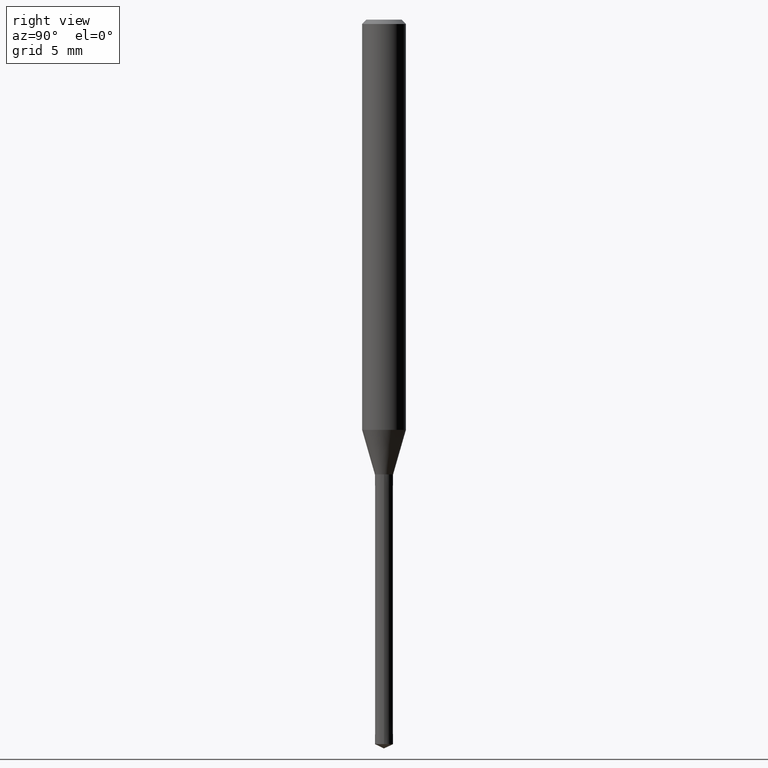
[diagram: clean part render]
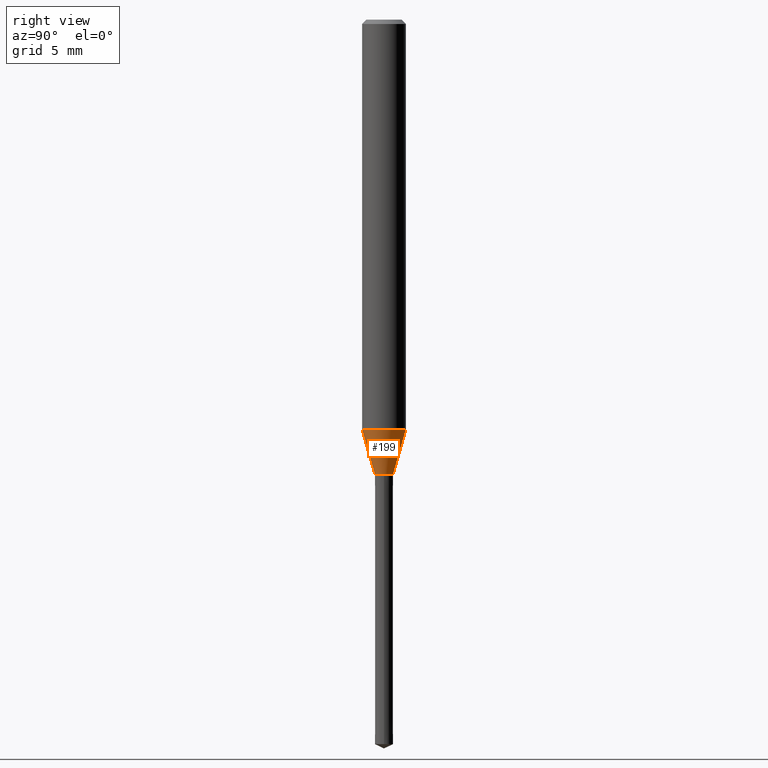
[diagram: same view with one face highlighted and labeled with its STEP entity id]
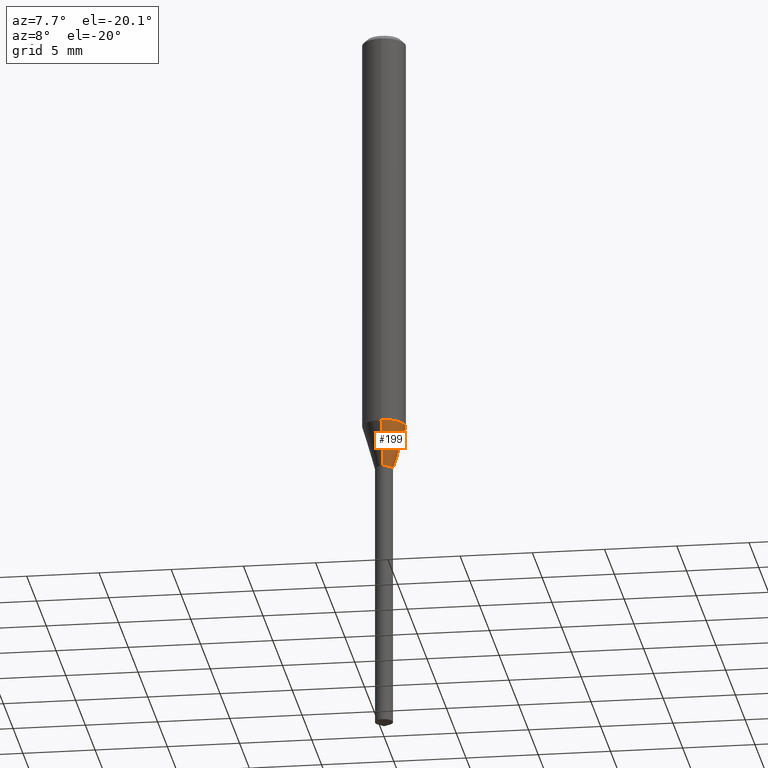
[diagram: same view with one face highlighted and labeled with its STEP entity id]
A machine part, right view. The second image highlights one B-rep face of the part: STEP entity #199.
A second angle (auxiliary view) of the same face is appended — the face is thin or edge-on in the first view.
In plain terms, the highlighted conical surface has half-angle 16.007 deg.
Its self-contained STEP definition (entity closure, byte-faithful):
#99=EDGE_CURVE('',#115,#131,#236,.T.);
#115=VERTEX_POINT('',#255);
#117=EDGE_CURVE('',#115,#193,#257,.T.);
#131=VERTEX_POINT('',#271);
#147=EDGE_CURVE('',#181,#193,#289,.T.);
#167=EDGE_CURVE('',#131,#181,#313,.T.);
#181=VERTEX_POINT('',#329);
#193=VERTEX_POINT('',#342);
#199=ADVANCED_FACE('',(#348),#349,.T.);
#236=LINE('',#382,#383);
#255=CARTESIAN_POINT('',(0.0,1.5,-28.149));
#257=CIRCLE('',#406,1.5);
#271=CARTESIAN_POINT('',(0.0,0.625,-31.1991339745962));
#289=LINE('',#449,#450);
#313=CIRCLE('',#478,0.625);
#329=CARTESIAN_POINT('',(7.65378971138986E-017,-0.625,-31.1991339745962));
#342=CARTESIAN_POINT('',(1.83690953073357E-016,-1.5,-28.149));
#348=FACE_OUTER_BOUND('',#524,.T.);
#349=CONICAL_SURFACE('',#525,1.0625,0.279370266681244);
#382=CARTESIAN_POINT('',(-1.30114425093628E-016,1.0625,-29.6740669872981));
#383=VECTOR('',#555,1.0);
#406=AXIS2_PLACEMENT_3D('',#581,#582,#583);
#449=CARTESIAN_POINT('',(1.30114425093628E-016,-1.0625,-29.6740669872981));
#450=VECTOR('',#617,1.0);
#478=AXIS2_PLACEMENT_3D('',#656,#657,#658);
#524=EDGE_LOOP('',(#695,#696,#697,#698));
#525=AXIS2_PLACEMENT_3D('',#699,#700,#701);
#555=DIRECTION('',(3.37685673756822E-017,-0.275750385177082,-0.961229278098983));
#581=CARTESIAN_POINT('',(0.0,0.0,-28.149));
#582=DIRECTION('',(0.0,0.0,-1.0));
#583=DIRECTION('',(0.0,1.0,0.0));
#617=DIRECTION('',(3.37685673756822E-017,-0.275750385177082,0.961229278098983));
#656=CARTESIAN_POINT('',(0.0,0.0,-31.1991339745962));
#657=DIRECTION('',(0.0,0.0,-1.0));
#658=DIRECTION('',(0.0,1.0,0.0));
#695=ORIENTED_EDGE('',*,*,#99,.F.);
#696=ORIENTED_EDGE('',*,*,#117,.T.);
#697=ORIENTED_EDGE('',*,*,#147,.F.);
#698=ORIENTED_EDGE('',*,*,#167,.F.);
#699=CARTESIAN_POINT('',(0.0,0.0,-29.6740669872981));
#700=DIRECTION('',(-0.0,-0.0,1.0));
#701=DIRECTION('',(0.0,1.0,0.0));